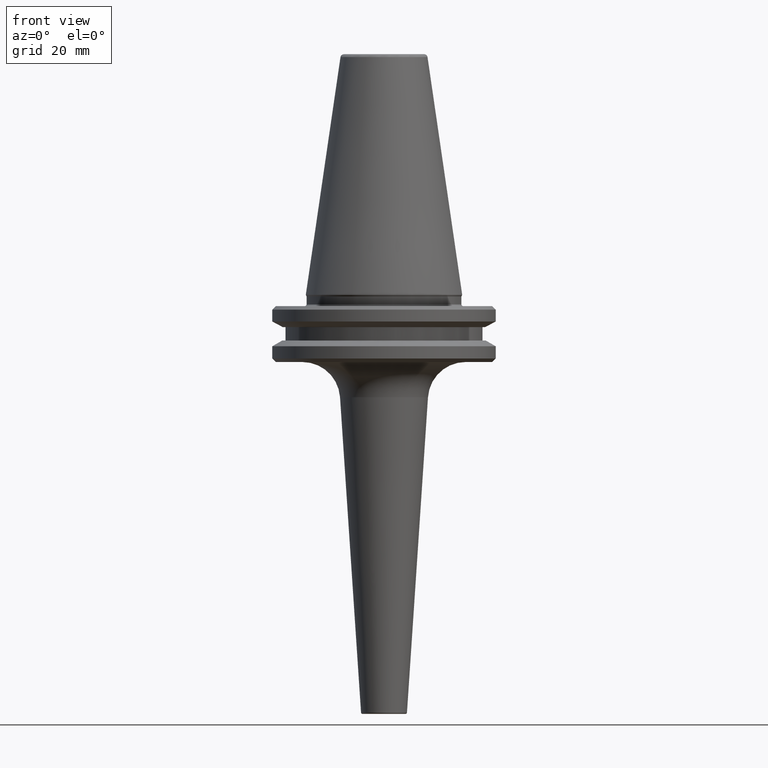
[diagram: clean part render]
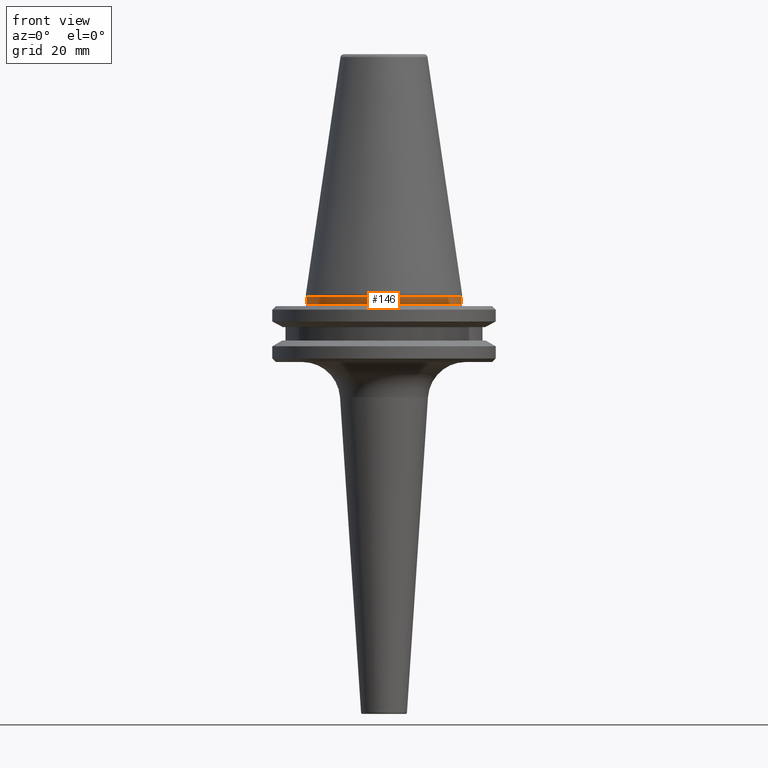
[diagram: same view with one face highlighted and labeled with its STEP entity id]
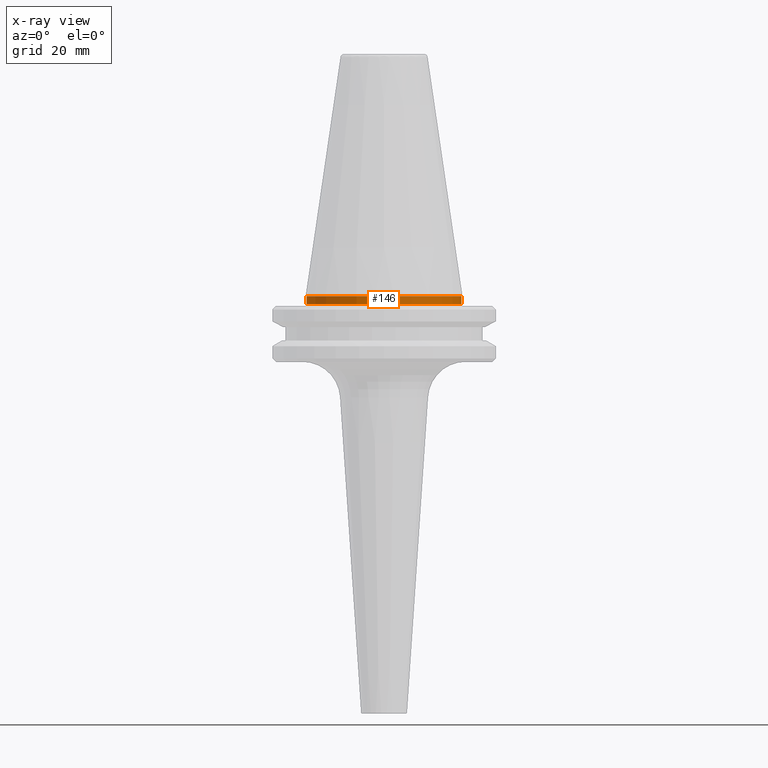
[diagram: x-ray of the same camera — body ghosted, the highlighted face saturated]
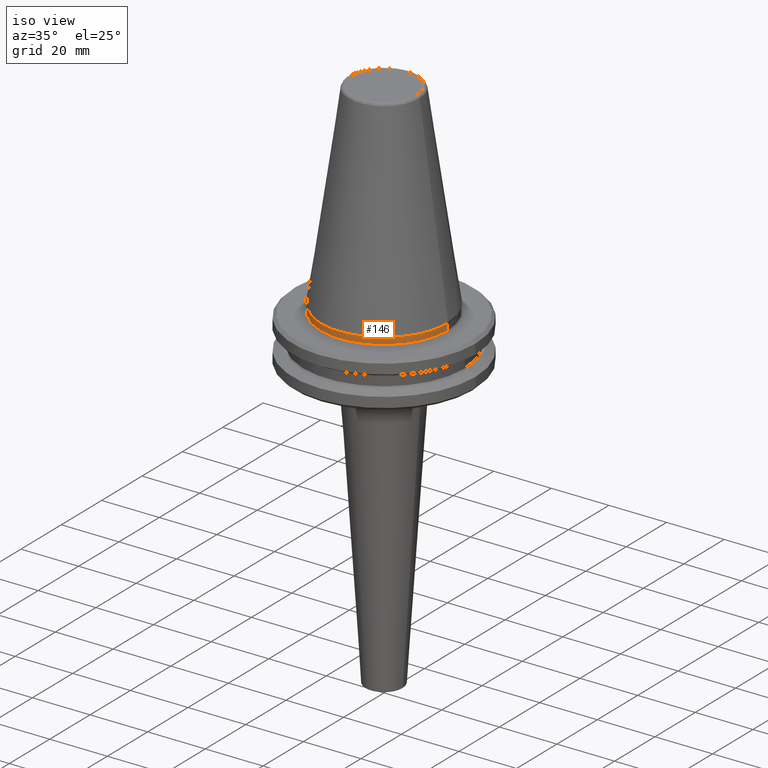
[diagram: same view with one face highlighted and labeled with its STEP entity id]
A machine part, front view. The second image highlights one B-rep face of the part: STEP entity #146.
The next image is the same camera in x-ray: the body ghosted, the highlighted face saturated — about 0% of this face is hidden behind the body in this view.
A second angle (iso view) of the same face is appended — the face is thin or edge-on in the first view.
In plain terms, the highlighted cylindrical surface (partial cylindrical patch) has radius 22 mm, axis along (0, 0, 1).
Its self-contained STEP definition (entity closure, byte-faithful):
#146 = ADVANCED_FACE ( 'NONE', ( #693 ), #904, .T. ) ;
#147 = CARTESIAN_POINT ( 'NONE',  ( 22.00000000000000000, 0.0000000000000000000, 113.5216080541959500 ) ) ;
#184 = DIRECTION ( 'NONE',  ( 0.0000000000000000000, 0.0000000000000000000, 1.000000000000000000 ) ) ;
#194 = CARTESIAN_POINT ( 'NONE',  ( -22.00000000000000000, 2.694222958124176800E-015, -2.699999999999994000 ) ) ;
#370 = CIRCLE ( 'NONE', #807, 22.00000000000000000 ) ;
#415 = ORIENTED_EDGE ( 'NONE', *, *, #786, .F. ) ;
#429 = CARTESIAN_POINT ( 'NONE',  ( 0.0000000000000000000, 0.0000000000000000000, -0.4825140571146635500 ) ) ;
#498 = CARTESIAN_POINT ( 'NONE',  ( 0.0000000000000000000, 0.0000000000000000000, 113.5216080541959500 ) ) ;
#531 = DIRECTION ( 'NONE',  ( 1.000000000000000000, 0.0000000000000000000, -7.885106708985486600E-017 ) ) ;
#532 = DIRECTION ( 'NONE',  ( 1.000000000000000000, 0.0000000000000000000, 0.0000000000000000000 ) ) ;
#545 = AXIS2_PLACEMENT_3D ( 'NONE', #498, #714, #532 ) ;
#565 = CARTESIAN_POINT ( 'NONE',  ( -22.00000000000000000, 2.694222958124176800E-015, -0.4825140571146635500 ) ) ;
#596 = VERTEX_POINT ( 'NONE', #652 ) ;
#619 = VECTOR ( 'NONE', #787, 1000.000000000000000 ) ;
#652 = CARTESIAN_POINT ( 'NONE',  ( 22.00000000000000000, 0.0000000000000000000, -0.4825140571146652700 ) ) ;
#690 = VERTEX_POINT ( 'NONE', #565 ) ;
#693 = FACE_OUTER_BOUND ( 'NONE', #989, .T. ) ;
#714 = DIRECTION ( 'NONE',  ( 0.0000000000000000000, 0.0000000000000000000, 1.000000000000000000 ) ) ;
#781 = CARTESIAN_POINT ( 'NONE',  ( -22.00000000000000000, 2.694222958124176800E-015, 113.5216080541959500 ) ) ;
#786 = EDGE_CURVE ( 'NONE', #891, #690, #879, .T. ) ;
#787 = DIRECTION ( 'NONE',  ( 0.0000000000000000000, 0.0000000000000000000, 1.000000000000000000 ) ) ;
#788 = EDGE_CURVE ( 'NONE', #916, #596, #1103, .T. ) ;
#807 = AXIS2_PLACEMENT_3D ( 'NONE', #830, #184, #911 ) ;
#830 = CARTESIAN_POINT ( 'NONE',  ( 0.0000000000000000000, 0.0000000000000000000, -2.699999999999994000 ) ) ;
#834 = CARTESIAN_POINT ( 'NONE',  ( 22.00000000000000000, 0.0000000000000000000, -2.699999999999994000 ) ) ;
#841 = ORIENTED_EDGE ( 'NONE', *, *, #844, .T. ) ;
#844 = EDGE_CURVE ( 'NONE', #891, #916, #370, .T. ) ;
#875 = EDGE_CURVE ( 'NONE', #690, #596, #1043, .T. ) ;
#879 = LINE ( 'NONE', #781, #619 ) ;
#891 = VERTEX_POINT ( 'NONE', #194 ) ;
#904 = CYLINDRICAL_SURFACE ( 'NONE', #545, 22.00000000000000000 ) ;
#911 = DIRECTION ( 'NONE',  ( 1.000000000000000000, 0.0000000000000000000, 0.0000000000000000000 ) ) ;
#916 = VERTEX_POINT ( 'NONE', #834 ) ;
#934 = AXIS2_PLACEMENT_3D ( 'NONE', #429, #1082, #531 ) ;
#942 = ORIENTED_EDGE ( 'NONE', *, *, #788, .T. ) ;
#989 = EDGE_LOOP ( 'NONE', ( #415, #841, #942, #1167 ) ) ;
#1041 = DIRECTION ( 'NONE',  ( 0.0000000000000000000, 0.0000000000000000000, 1.000000000000000000 ) ) ;
#1043 = CIRCLE ( 'NONE', #934, 22.00000000000000000 ) ;
#1082 = DIRECTION ( 'NONE',  ( 0.0000000000000000000, 0.0000000000000000000, 1.000000000000000000 ) ) ;
#1103 = LINE ( 'NONE', #147, #1130 ) ;
#1130 = VECTOR ( 'NONE', #1041, 1000.000000000000000 ) ;
#1167 = ORIENTED_EDGE ( 'NONE', *, *, #875, .F. ) ;